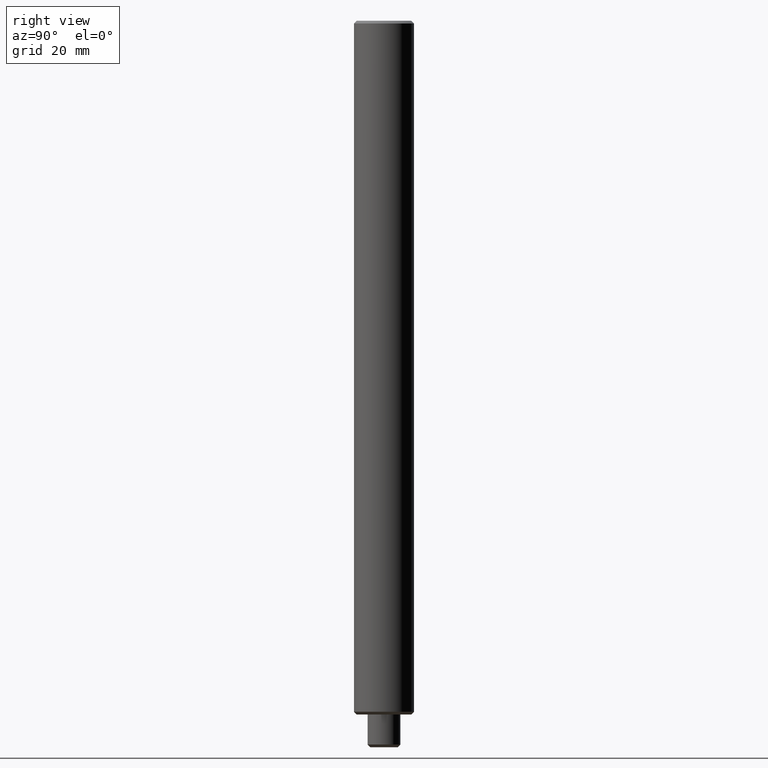
[diagram: clean part render]
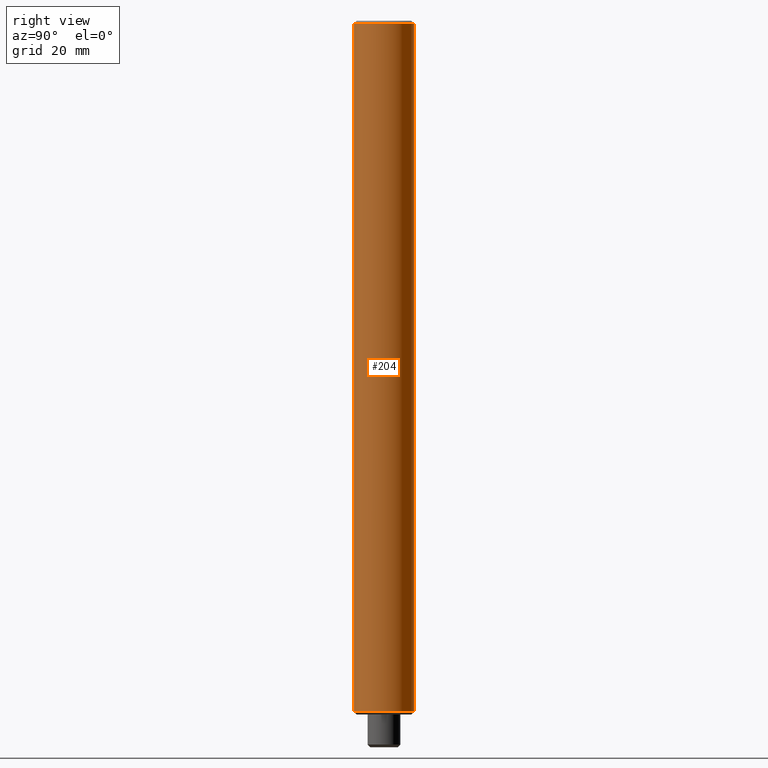
[diagram: same view with one face highlighted and labeled with its STEP entity id]
A machine part, right view. The second image highlights one B-rep face of the part: STEP entity #204.
In plain terms, the highlighted cylindrical surface (edge-blend (fillet) strip) has radius 5.5 mm, axis along (-0, -0, 1).
Its self-contained STEP definition (entity closure, byte-faithful):
#134=VERTEX_POINT('NONE',#315);
#146=VERTEX_POINT('NONE',#330);
#152=EDGE_CURVE('NONE',#246,#220,#336,.T.);
#162=EDGE_CURVE('NONE',#134,#246,#347,.T.);
#170=EDGE_CURVE('NONE',#134,#146,#358,.T.);
#204=ADVANCED_FACE('NONE',(#397),#398,.T.);
#220=VERTEX_POINT('NONE',#415);
#230=EDGE_CURVE('NONE',#220,#146,#425,.T.);
#246=VERTEX_POINT('NONE',#441);
#315=CARTESIAN_POINT('',(-6.73533494602306E-016,-5.49999999999999,0.499999999999987));
#330=CARTESIAN_POINT('',(-6.73533494602306E-016,-5.49999999999999,126.5));
#336=LINE('',#536,#537);
#347=CIRCLE('',#551,5.49999999999999);
#358=LINE('',#563,#564);
#397=FACE_OUTER_BOUND('',#614,.T.);
#398=CYLINDRICAL_SURFACE('',#615,5.49999999999999);
#415=CARTESIAN_POINT('',(0.0,5.49999999999999,126.5));
#425=CIRCLE('',#651,5.49999999999999);
#441=CARTESIAN_POINT('',(0.0,5.49999999999999,0.499999999999987));
#536=CARTESIAN_POINT('',(0.0,5.49999999999999,44.3839792060492));
#537=VECTOR('',#777,1000.0);
#551=AXIS2_PLACEMENT_3D('',#792,#793,#794);
#563=CARTESIAN_POINT('',(-6.73533494602306E-016,-5.49999999999999,44.3839792060492));
#564=VECTOR('',#811,1000.0);
#614=EDGE_LOOP('',(#871,#872,#873,#874));
#615=AXIS2_PLACEMENT_3D('',#875,#876,#877);
#651=AXIS2_PLACEMENT_3D('',#900,#901,#902);
#777=DIRECTION('',(0.0,-0.0,1.0));
#792=CARTESIAN_POINT('',(0.0,0.0,0.499999999999987));
#793=DIRECTION('',(0.0,-0.0,1.0));
#794=DIRECTION('',(0.0,1.0,0.0));
#811=DIRECTION('',(0.0,-0.0,1.0));
#871=ORIENTED_EDGE('',*,*,#170,.F.);
#872=ORIENTED_EDGE('',*,*,#162,.T.);
#873=ORIENTED_EDGE('',*,*,#152,.T.);
#874=ORIENTED_EDGE('',*,*,#230,.T.);
#875=CARTESIAN_POINT('',(0.0,0.0,44.3839792060492));
#876=DIRECTION('',(-0.0,-0.0,1.0));
#877=DIRECTION('',(0.0,1.0,0.0));
#900=CARTESIAN_POINT('',(0.0,0.0,126.5));
#901=DIRECTION('',(0.0,0.0,-1.0));
#902=DIRECTION('',(0.0,-1.0,0.0));